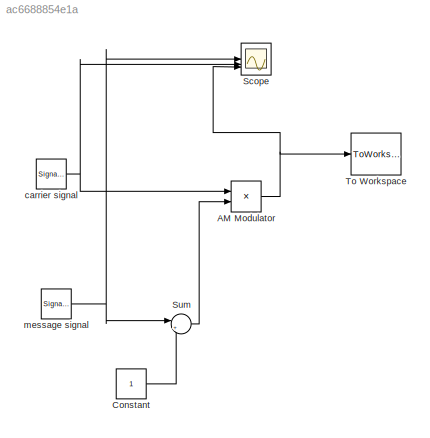
MODEL slx_ac6688854e1a
KIND model
CONFIG AbsTol = auto
CONFIG EnableMultiTasking = off
CONFIG FixedStep = auto
CONFIG MaxStep = auto
CONFIG MinStep = auto
CONFIG RelTol = 1e-3
CONFIG SampleTimeConstraint = Unconstrained
CONFIG SolverName = VariableStepAuto
CONFIG StartTime = 0.0
CONFIG StopTime = 0.01
BLOCK [Product] AM Modulator
BLOCK [Constant] Constant
BLOCK [Scope] Scope
  Floating = off
  NumInputPorts = 3
  ScopeSpecificationString = Simulink.scopes.TimeScopeBlockCfg('CurrentConfiguration', extmgr.ConfigurationSet(extmgr.Configuration('Core','General UI',true),extmgr.Configuration('Core','Source UI',true),extmgr.Configuration('Sources','WiredSimulink',true),extmgr.Configuration('Visuals','Time Domain',true,'SerializedDisplays',{struct('MinYLimReal','-5.61303','MaxYLimReal','3.99002','YLabelReal','','MinYLimMag','0.00000','MaxY...<+3192ch>
BLOCK [Sum] Sum
  Inputs = |++
BLOCK [ToWorkspace] To Workspace
  MaxDataPoints = inf
  SampleTime = -1
  Save2DSignal = 2-D array (concatenate along first dimension)
  VariableName = AM
BLOCK [SignalGenerator] carrier signal
  Frequency = 100000000
BLOCK [SignalGenerator] message signal
  Amplitude = 0.5
  Frequency = 1000
NET AM Modulator:1 -> Scope:3, To Workspace:1
LINE Constant:1 -> Sum:2
LINE Sum:1 -> AM Modulator:2
NET carrier signal:1 -> AM Modulator:1, Scope:2
NET message signal:1 -> Scope:1, Sum:1
note: NET lines group one-source signal fan-out (src -> all destinations, sorted); 1:1 wires keep LINE
